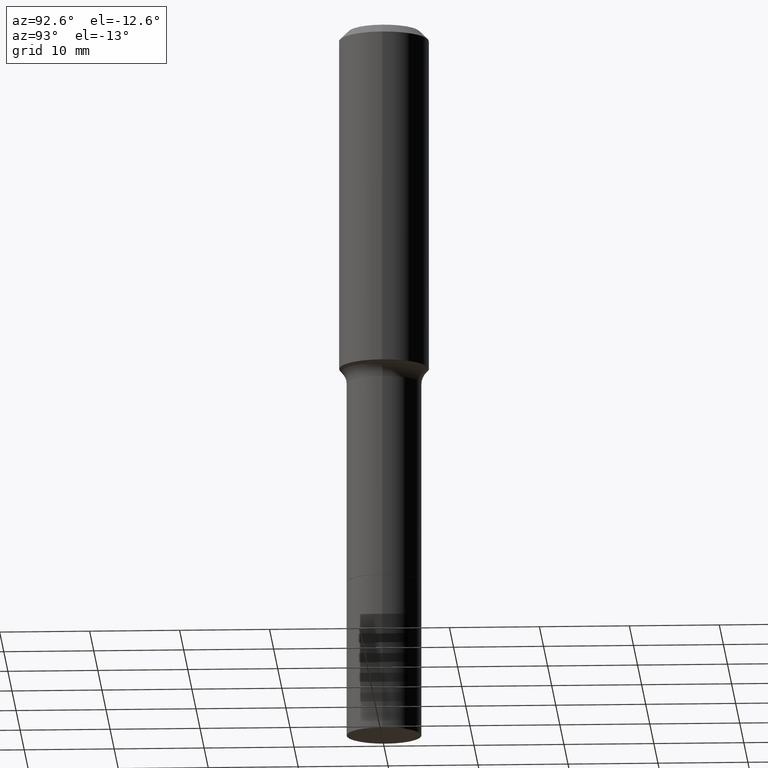
[diagram: clean part render]
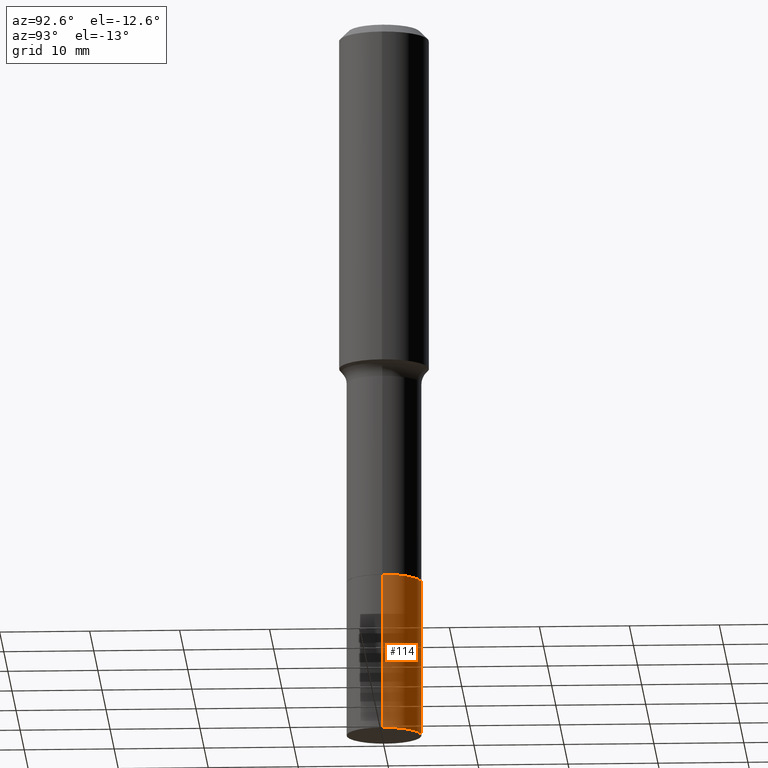
[diagram: same view with one face highlighted and labeled with its STEP entity id]
A machine part, auxiliary view. The second image highlights one B-rep face of the part: STEP entity #114.
In plain terms, the highlighted cylindrical surface (partial cylindrical patch) has radius 4.1669 mm, axis along (-0, 0, 1).
Its self-contained STEP definition (entity closure, byte-faithful):
#35 = AXIS2_PLACEMENT_3D ( 'NONE', #485, #96, #95 ) ;
#37 = CARTESIAN_POINT ( 'NONE',  ( -0.1640500000000000014, -8.635291908252151260E-15, -3.149600000000000399 ) ) ;
#41 = CARTESIAN_POINT ( 'NONE',  ( 0.1640500000000000014, -1.214232465209480476E-14, -3.149600000000000399 ) ) ;
#58 = VERTEX_POINT ( 'NONE', #37 ) ;
#75 = CIRCLE ( 'NONE', #343, 0.1640500000000000014 ) ;
#95 = DIRECTION ( 'NONE',  ( 1.000000000000000000, -6.982962677686270655E-15, 0.000000000000000000 ) ) ;
#96 = DIRECTION ( 'NONE',  ( -2.445468806185136597E-29, 3.491481338843145583E-15, 1.000000000000000000 ) ) ;
#98 = DIRECTION ( 'NONE',  ( 1.000000000000000000, -6.982962677686270655E-15, 0.000000000000000000 ) ) ;
#102 = FACE_OUTER_BOUND ( 'NONE', #259, .T. ) ;
#110 = DIRECTION ( 'NONE',  ( -2.445468806185136597E-29, 3.491481338843145583E-15, 1.000000000000000000 ) ) ;
#114 = ADVANCED_FACE ( 'NONE', ( #102 ), #323, .T. ) ;
#138 = ORIENTED_EDGE ( 'NONE', *, *, #214, .F. ) ;
#160 = VERTEX_POINT ( 'NONE', #222 ) ;
#165 = CARTESIAN_POINT ( 'NONE',  ( 0.1640500000000000014, -9.750659934987248631E-15, -2.464599999999999902 ) ) ;
#198 = ORIENTED_EDGE ( 'NONE', *, *, #392, .F. ) ;
#202 = EDGE_CURVE ( 'NONE', #58, #160, #227, .T. ) ;
#203 = CIRCLE ( 'NONE', #409, 0.1640500000000000014 ) ;
#214 = EDGE_CURVE ( 'NONE', #306, #160, #75, .T. ) ;
#222 = CARTESIAN_POINT ( 'NONE',  ( -0.1640500000000000014, -8.635291908252151260E-15, -2.464599999999999902 ) ) ;
#225 = CARTESIAN_POINT ( 'NONE',  ( 0.1640500000000000014, -9.750659934987248631E-15, -2.464599999999999902 ) ) ;
#227 = LINE ( 'NONE', #293, #252 ) ;
#252 = VECTOR ( 'NONE', #254, 39.37007874015748143 ) ;
#254 = DIRECTION ( 'NONE',  ( -2.445468806185136877E-29, 3.491481338843145188E-15, 1.000000000000000000 ) ) ;
#259 = EDGE_LOOP ( 'NONE', ( #500, #308, #138, #198 ) ) ;
#293 = CARTESIAN_POINT ( 'NONE',  ( -0.1640500000000000014, -7.439459549698371617E-15, -2.464599999999999902 ) ) ;
#300 = DIRECTION ( 'NONE',  ( -2.445468806185136597E-29, 3.491481338843145583E-15, 1.000000000000000000 ) ) ;
#302 = DIRECTION ( 'NONE',  ( 1.000000000000000000, -6.982962677686270655E-15, 0.000000000000000000 ) ) ;
#306 = VERTEX_POINT ( 'NONE', #225 ) ;
#308 = ORIENTED_EDGE ( 'NONE', *, *, #202, .T. ) ;
#322 = EDGE_CURVE ( 'NONE', #417, #58, #203, .T. ) ;
#323 = CYLINDRICAL_SURFACE ( 'NONE', #35, 0.1640500000000000014 ) ;
#329 = VECTOR ( 'NONE', #380, 39.37007874015748143 ) ;
#343 = AXIS2_PLACEMENT_3D ( 'NONE', #416, #300, #98 ) ;
#380 = DIRECTION ( 'NONE',  ( -2.445468806185136877E-29, 3.491481338843145188E-15, 1.000000000000000000 ) ) ;
#392 = EDGE_CURVE ( 'NONE', #417, #306, #518, .T. ) ;
#409 = AXIS2_PLACEMENT_3D ( 'NONE', #501, #110, #302 ) ;
#416 = CARTESIAN_POINT ( 'NONE',  ( 6.027102419723887066E-29, -8.605104907712816179E-15, -2.464599999999999902 ) ) ;
#417 = VERTEX_POINT ( 'NONE', #41 ) ;
#485 = CARTESIAN_POINT ( 'NONE',  ( 6.027102419723887066E-29, -8.605104907712816179E-15, -2.464599999999999902 ) ) ;
#500 = ORIENTED_EDGE ( 'NONE', *, *, #322, .T. ) ;
#501 = CARTESIAN_POINT ( 'NONE',  ( 7.702248551960706711E-29, -1.099676962482037231E-14, -3.149600000000000399 ) ) ;
#518 = LINE ( 'NONE', #165, #329 ) ;